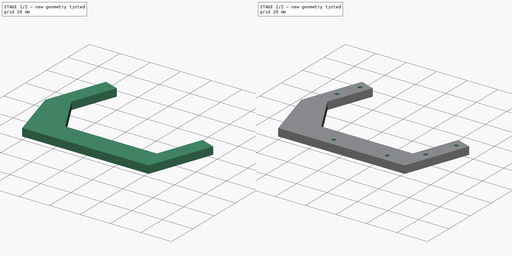
[diagram: build sequence overview — one tinted view per stage of 2, left to right]
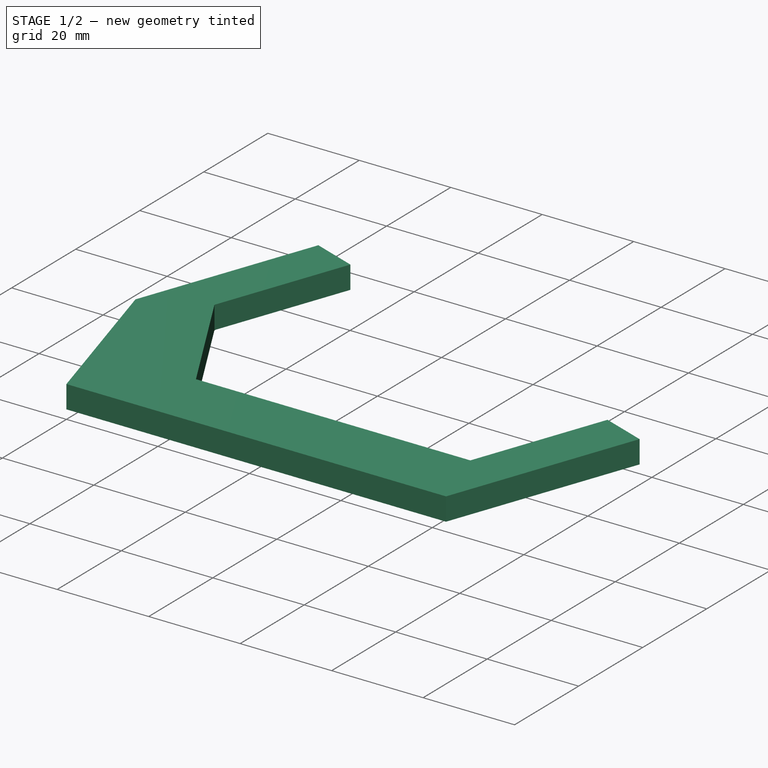
[diagram: stage 1 of 2 — iso view after this stage's code; geometry added in this stage tinted green]
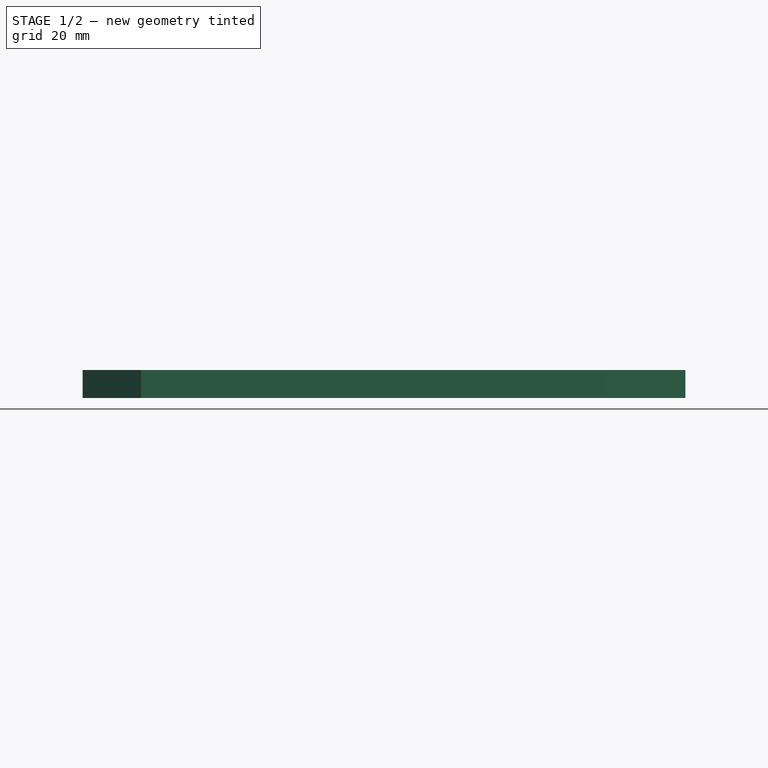
[diagram: stage 1 of 2 — front view after this stage's code; geometry added in this stage tinted green]
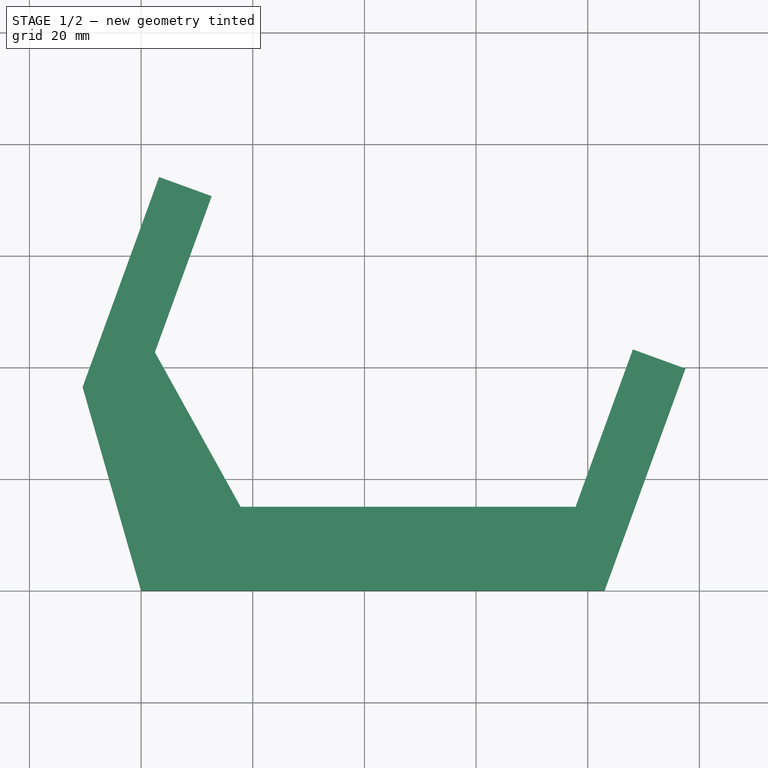
[diagram: stage 1 of 2 — top view after this stage's code; geometry added in this stage tinted green]
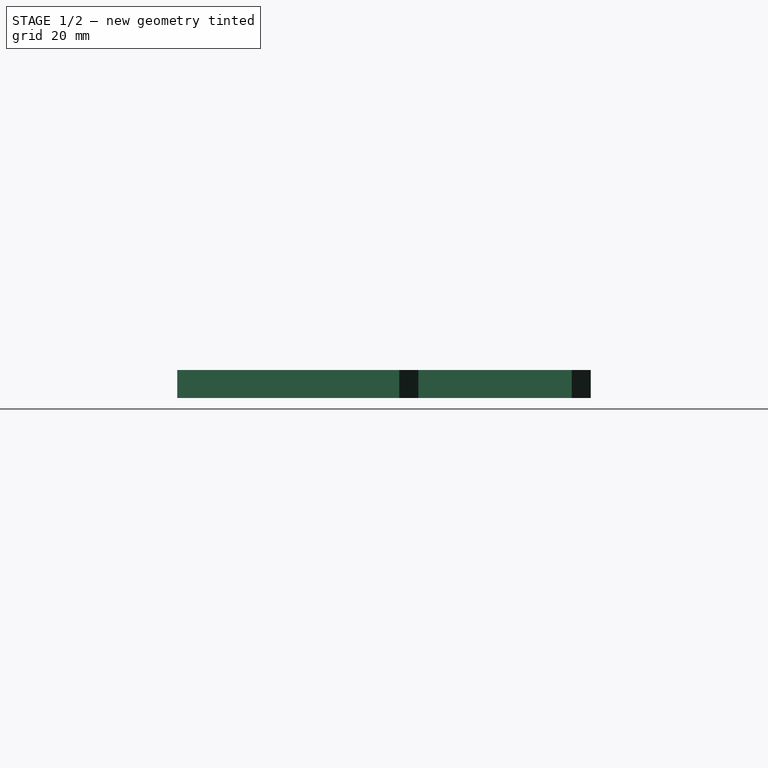
[diagram: stage 1 of 2 — right view after this stage's code; geometry added in this stage tinted green]
FCSTD DOCUMENT  (FreeCAD 0.19R)
Label: drum_support_side
License: All rights reserved
LicenseURL: http://en.wikipedia.org/wiki/All_rights_reserved
objects: Sketcher::SketchObject×2, PartDesign::Pad×1, PartDesign::Pocket×1, PartDesign::Body×1
note: 7 computed .brp shape members not serialized (recipe doc carries the construction recipe); baked Part::Feature solids carry a one-line shape summary decoded from their .brp

FEATURE [Sketcher::SketchObject] Sketch
  MapMode = 5
  Support = -> [XY_Plane]
  sketch-geometry (10):
    g0: LineSegment StartX=0 StartY=0 StartZ=0 EndX=83 EndY=0 EndZ=0
    g1: LineSegment StartX=83 StartY=0 StartZ=0 EndX=97.4753 EndY=39.7706 EndZ=0
    g2: LineSegment StartX=97.4753 StartY=39.7706 StartZ=0 EndX=88.0784 EndY=43.1908 EndZ=0
    g3: LineSegment StartX=88.0784 StartY=43.1908 StartZ=0 EndX=77.8178 EndY=15 EndZ=0
    g4: LineSegment StartX=77.8178 StartY=15 StartZ=0 EndX=17.8178 EndY=15 EndZ=0
    g5: LineSegment StartX=17.8178 StartY=15 StartZ=0 EndX=2.44869 EndY=42.7266 EndZ=0
    g6: LineSegment StartX=2.44869 StartY=42.7266 StartZ=0 EndX=12.6145 EndY=70.657 EndZ=0
    g7: LineSegment StartX=12.6145 StartY=70.657 StartZ=0 EndX=3.21761 EndY=74.0772 EndZ=0
    g8: LineSegment StartX=3.21761 StartY=74.0772 StartZ=0 EndX=-10.4632 EndY=36.4895 EndZ=0
    g9: LineSegment StartX=-10.4632 StartY=36.4895 StartZ=0 EndX=1.8e-15 EndY=0 EndZ=0
  constraints (29):
    c: Coincident(g0,g-1)
    c: PointOnObject(g0,g-1)
    c: Coincident(g2,g1)
    c: Coincident(g3,g2)
    c: Coincident(g4,g3)
    c: Horizontal(g4)
    c: Coincident(g5,g4)
    c: Coincident(g6,g5)
    c: Coincident(g7,g6)
    c: Coincident(g8,g7)
    c: Coincident(g9,g8)
    c: Coincident(g9,g0)
    c: DistanceX(g0,g0) = 83
    c: Coincident(g1,g0)
    c: DistanceX(g4,g4) = 60
    c: Parallel(g3,g1)
    c: Perpendicular(g3,g2)
    c: Distance(g2,g1) = 10
    c: Angle(g3,g4) = 1.91986
    c: Distance(g3,g2) = 30
    c: Distance(g7,g6) = 10
    c: Perpendicular(g8,g7)
    c: Parallel(g6,g8)
    c: Distance(g8,g7) = 40
    c: Angle(g4,g5) = 2.07694
    c: Angle(g0,g8) = 1.22173
    c: DistanceY(g0,g3) = 15
    c: Angle(g0,g9) = 1.85005
    c: Distance(g8,g0) = 37.96
FEATURE [PartDesign::Pad] Pad
  Length = 5
  Length2 = 100
  Profile = -> Sketch
  Type = 0
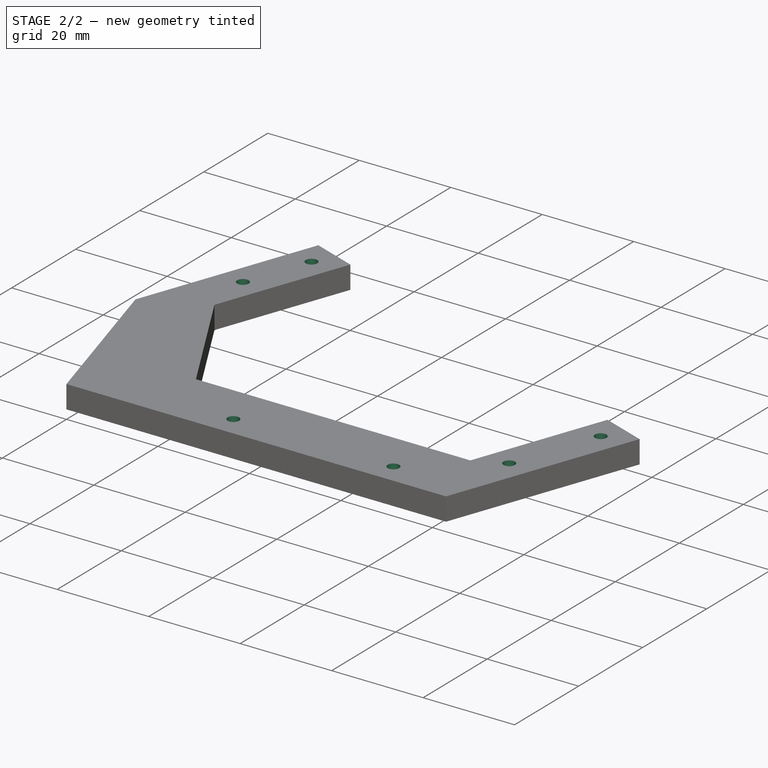
[diagram: stage 2 of 2 — iso view after this stage's code; geometry added in this stage tinted green]
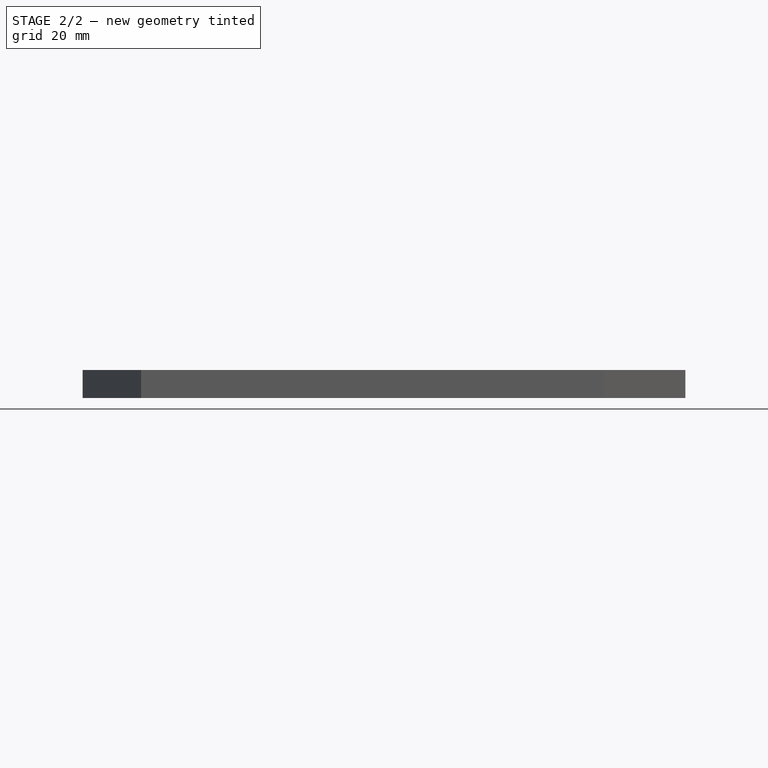
[diagram: stage 2 of 2 — front view after this stage's code; geometry added in this stage tinted green]
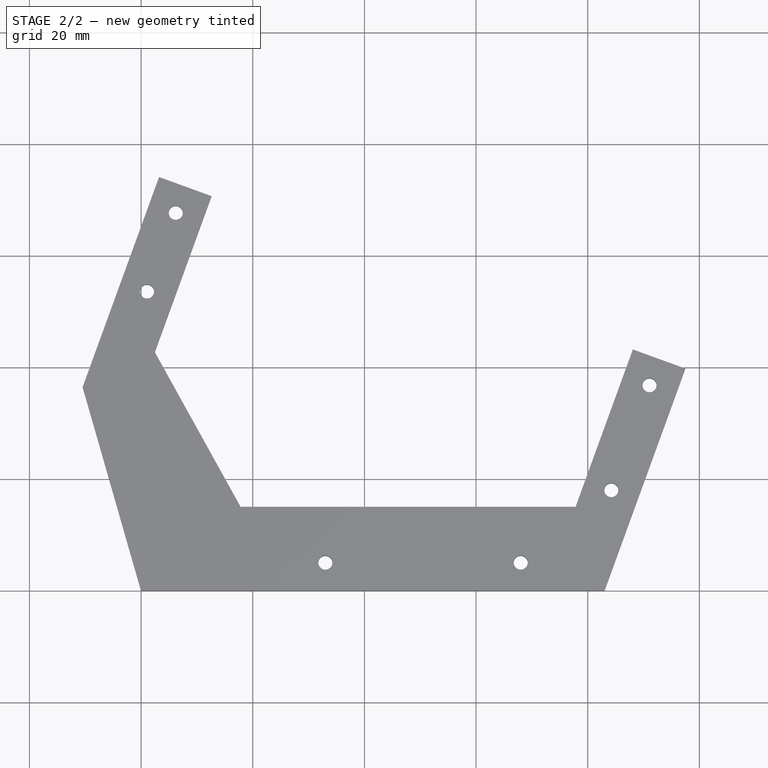
[diagram: stage 2 of 2 — top view after this stage's code; geometry added in this stage tinted green]
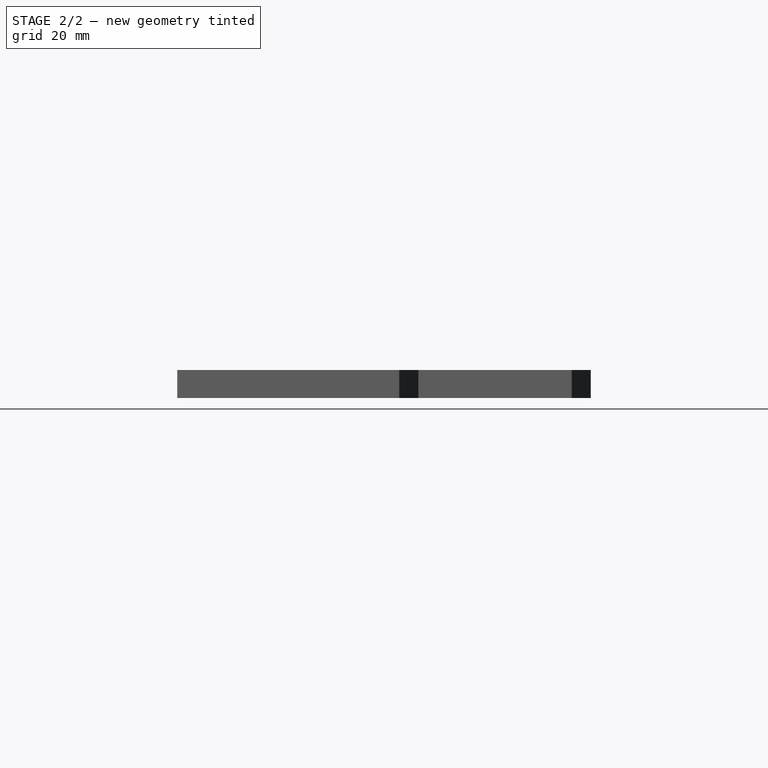
[diagram: stage 2 of 2 — right view after this stage's code; geometry added in this stage tinted green]
FEATURE [Sketcher::SketchObject] Sketch001
  ExternalGeometry = -> [Pad]
  MapMode = 5
  Placement = pos=(0,0,5) rot=(0,0,1;0rad)
  Support = -> [Pad]
  sketch-geometry (6):
    g0: Circle CenterX=91.0667 CenterY=36.7822 CenterZ=0 NormalX=0 NormalY=0 NormalZ=1 AngleXU=0 Radius=1.25
    g1: Circle CenterX=84.2263 CenterY=17.9884 CenterZ=0 NormalX=0 NormalY=0 NormalZ=1 AngleXU=0 Radius=1.25
    g2: Circle CenterX=6.20597 CenterY=67.6686 CenterZ=0 NormalX=0 NormalY=0 NormalZ=1 AngleXU=0 Radius=1.25
    g3: Circle CenterX=1.07567 CenterY=53.5732 CenterZ=0 NormalX=0 NormalY=0 NormalZ=1 AngleXU=0 Radius=1.25
    g4: Circle CenterX=68 CenterY=5 CenterZ=0 NormalX=0 NormalY=0 NormalZ=1 AngleXU=0 Radius=1.25
    g5: Circle CenterX=33 CenterY=5 CenterZ=0 NormalX=0 NormalY=0 NormalZ=1 AngleXU=0 Radius=1.25
  constraints (18):
    c: Diameter(g0) = 2.5
    c: Diameter(g1) = 2.5
    c: Distance(g0,g-4) = 5
    c: Distance(g1,g-4) = 5
    c: Distance(g0,g-3) = 5
    c: Distance(g1,g-3) = 25
    c: Diameter(g2) = 2.5
    c: Diameter(g3) = 2.5
    c: Distance(g2,g-6) = 5
    c: Distance(g3,g-6) = 5
    c: Distance(g2,g-5) = 5
    c: Distance(g3,g-5) = 20
    c: Diameter(g4) = 2.5
    c: Diameter(g5) = 2.5
    c: DistanceY(g-4,g4) = 5
    c: DistanceY(g-4,g5) = 5
    c: DistanceX(g4,g-4) = 15
    c: DistanceX(g5,g-4) = 50
FEATURE [PartDesign::Pocket] Pocket
  BaseFeature = -> Pad
  Length = 5
  Length2 = 100
  Profile = -> Sketch001
  Type = 0
FEATURE [PartDesign::Body] Body
  Group = -> [Sketch,Pad,Sketch001,Pocket]
  Origin = -> Origin
  Tip = -> Pocket
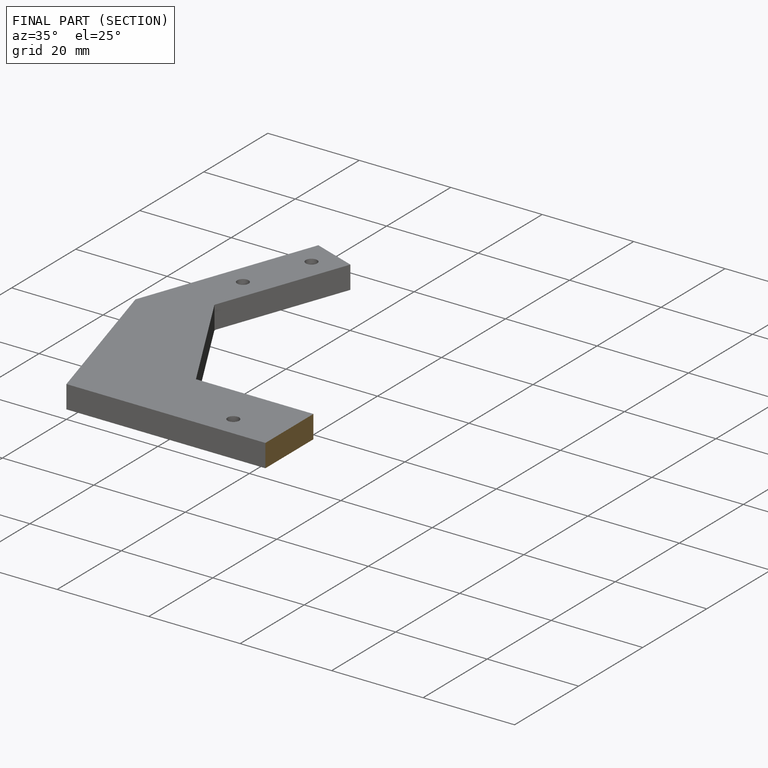
[diagram: finished part — half-section view (interior)]
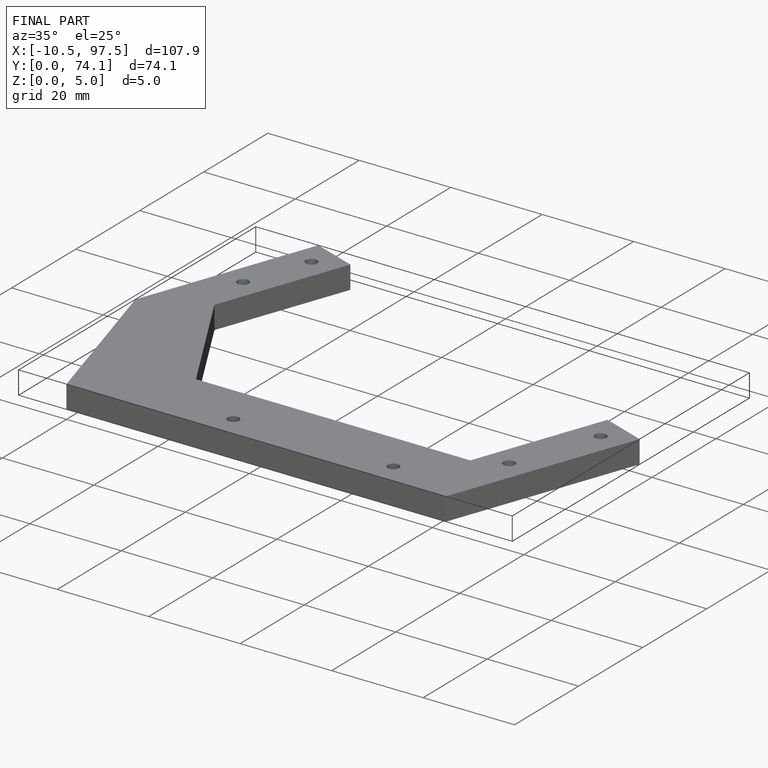
[diagram: finished part — iso view with bounding-box wireframe]
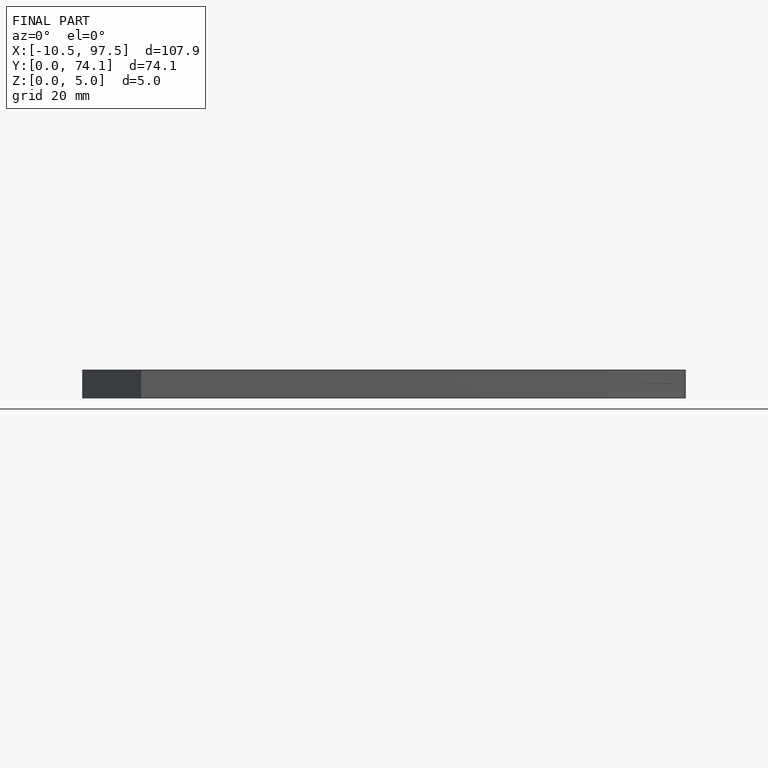
[diagram: finished part — front view with bounding-box wireframe]
